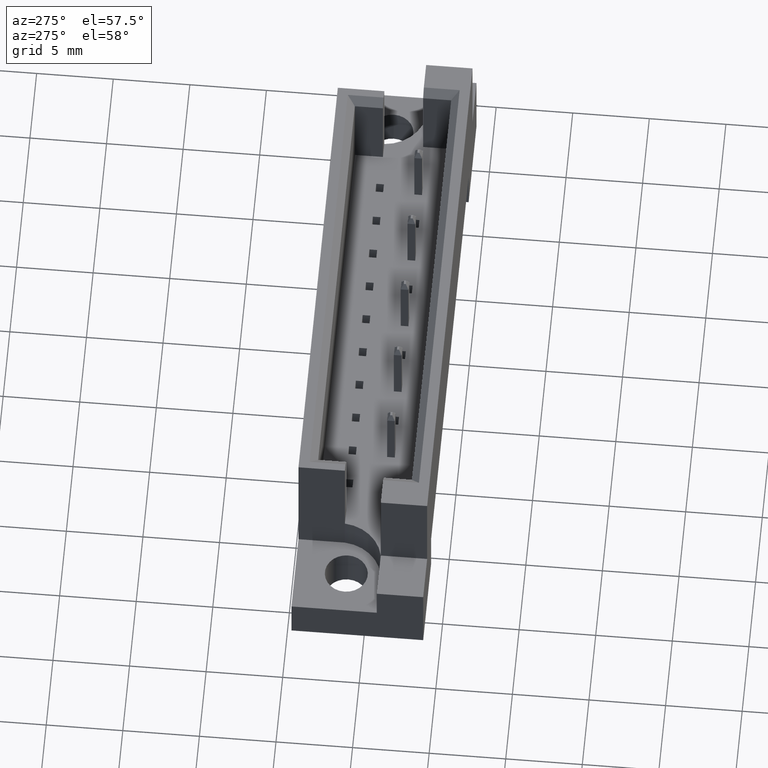
[diagram: clean part render]
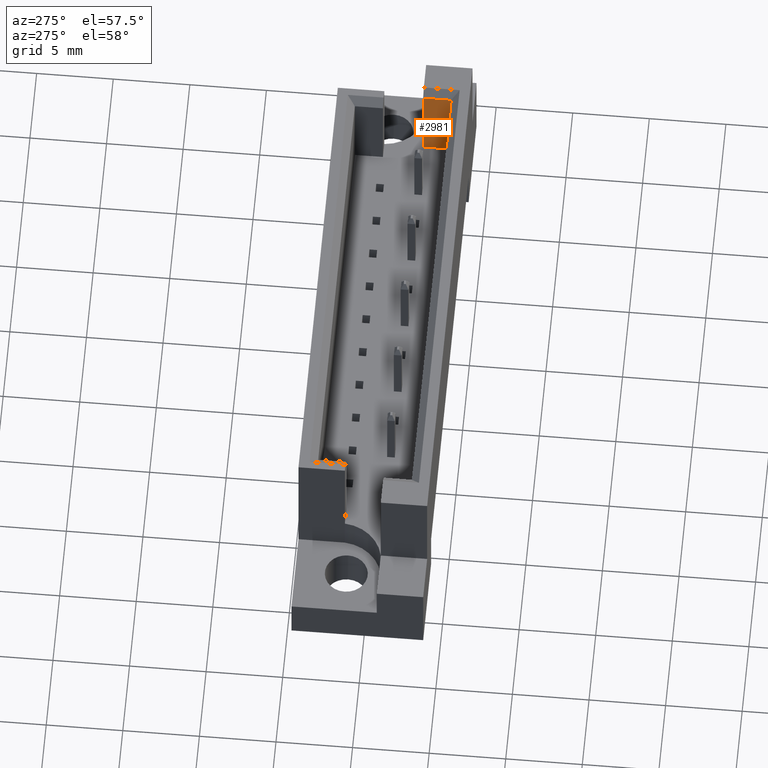
[diagram: same view with one face highlighted and labeled with its STEP entity id]
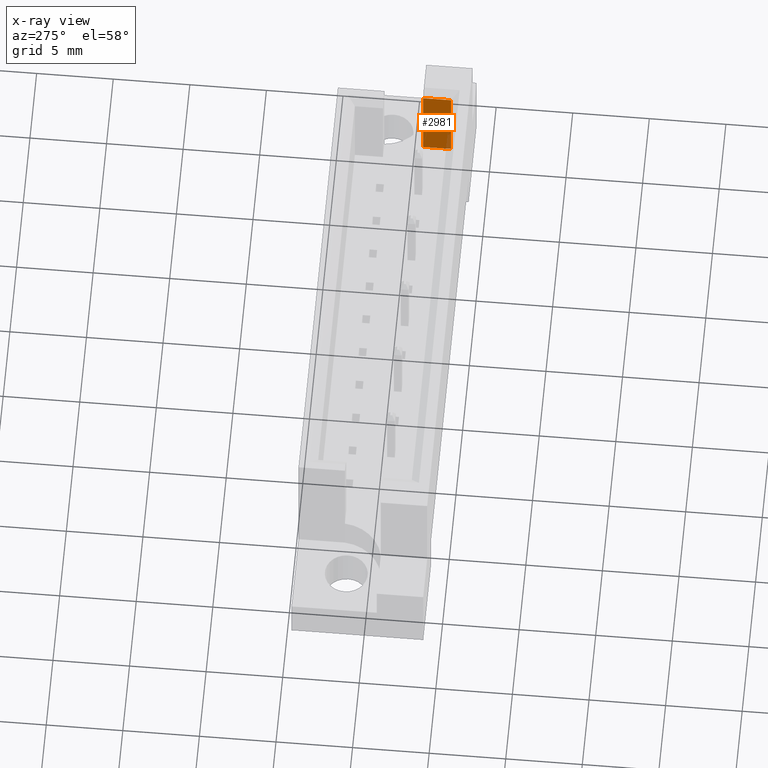
[diagram: x-ray of the same camera — body ghosted, the highlighted face saturated]
A machine part, auxiliary view. The second image highlights one B-rep face of the part: STEP entity #2981.
The next image is the same camera in x-ray: the body ghosted, the highlighted face saturated — about 4% of this face is hidden behind the body in this view.
In plain terms, the highlighted planar face has unit normal (1, 0, 0).
Its self-contained STEP definition (entity closure, byte-faithful):
#409 = VERTEX_POINT ( 'NONE', #426 ) ;
#426 = CARTESIAN_POINT ( 'NONE',  ( 14.68999999999999950, -3.100000000000135536, 11.09199999999999697 ) ) ;
#636 = LINE ( 'NONE', #4032, #2792 ) ;
#724 = DIRECTION ( 'NONE',  ( -0.0000000000000000000, 0.0000000000000000000, 1.000000000000000000 ) ) ;
#746 = DIRECTION ( 'NONE',  ( -0.0000000000000000000, 0.0000000000000000000, 1.000000000000000000 ) ) ;
#844 = VERTEX_POINT ( 'NONE', #1540 ) ;
#1125 = CARTESIAN_POINT ( 'NONE',  ( 14.68999999999999950, -3.100000000000135536, 5.199999999999999289 ) ) ;
#1540 = CARTESIAN_POINT ( 'NONE',  ( 14.68999999999999950, -1.270000000000031548, 5.199999999999999289 ) ) ;
#2071 = VECTOR ( 'NONE', #724, 1000.000000000000000 ) ;
#2161 = VECTOR ( 'NONE', #746, 1000.000000000000000 ) ;
#2395 = ORIENTED_EDGE ( 'NONE', *, *, #4173, .T. ) ;
#2462 = EDGE_CURVE ( 'NONE', #4112, #844, #3154, .T. ) ;
#2487 = AXIS2_PLACEMENT_3D ( 'NONE', #1125, #2670, #4198 ) ;
#2628 = EDGE_LOOP ( 'NONE', ( #2949, #2395, #4381, #3257 ) ) ;
#2641 = CARTESIAN_POINT ( 'NONE',  ( 14.68999999999999950, -3.100000000000135536, 5.199999999999999289 ) ) ;
#2670 = DIRECTION ( 'NONE',  ( 1.000000000000000000, -0.0000000000000000000, 0.0000000000000000000 ) ) ;
#2746 = LINE ( 'NONE', #4275, #2161 ) ;
#2751 = CARTESIAN_POINT ( 'NONE',  ( 14.68999999999999950, -3.100000000000135536, 5.199999999999999289 ) ) ;
#2792 = VECTOR ( 'NONE', #2902, 1000.000000000000000 ) ;
#2902 = DIRECTION ( 'NONE',  ( 0.0000000000000000000, 1.000000000000000000, 0.0000000000000000000 ) ) ;
#2949 = ORIENTED_EDGE ( 'NONE', *, *, #4551, .T. ) ;
#2981 = ADVANCED_FACE ( 'NONE', ( #4616 ), #4571, .F. ) ;
#3117 = CARTESIAN_POINT ( 'NONE',  ( 14.68999999999999950, -1.270000000000031548, 11.09199999999999697 ) ) ;
#3154 = LINE ( 'NONE', #2751, #4782 ) ;
#3257 = ORIENTED_EDGE ( 'NONE', *, *, #2462, .F. ) ;
#3370 = VERTEX_POINT ( 'NONE', #3117 ) ;
#4032 = CARTESIAN_POINT ( 'NONE',  ( 14.68999999999999950, -3.100000000000135536, 11.09199999999999697 ) ) ;
#4112 = VERTEX_POINT ( 'NONE', #4451 ) ;
#4173 = EDGE_CURVE ( 'NONE', #409, #3370, #636, .T. ) ;
#4198 = DIRECTION ( 'NONE',  ( 0.0000000000000000000, 0.0000000000000000000, -1.000000000000000000 ) ) ;
#4256 = DIRECTION ( 'NONE',  ( 0.0000000000000000000, 1.000000000000000000, 0.0000000000000000000 ) ) ;
#4275 = CARTESIAN_POINT ( 'NONE',  ( 14.68999999999999950, -1.270000000000031548, 5.199999999999999289 ) ) ;
#4381 = ORIENTED_EDGE ( 'NONE', *, *, #4747, .F. ) ;
#4451 = CARTESIAN_POINT ( 'NONE',  ( 14.68999999999999950, -3.100000000000135536, 5.199999999999999289 ) ) ;
#4551 = EDGE_CURVE ( 'NONE', #4112, #409, #4834, .T. ) ;
#4571 = PLANE ( 'NONE',  #2487 ) ;
#4616 = FACE_OUTER_BOUND ( 'NONE', #2628, .T. ) ;
#4747 = EDGE_CURVE ( 'NONE', #844, #3370, #2746, .T. ) ;
#4782 = VECTOR ( 'NONE', #4256, 1000.000000000000000 ) ;
#4834 = LINE ( 'NONE', #2641, #2071 ) ;